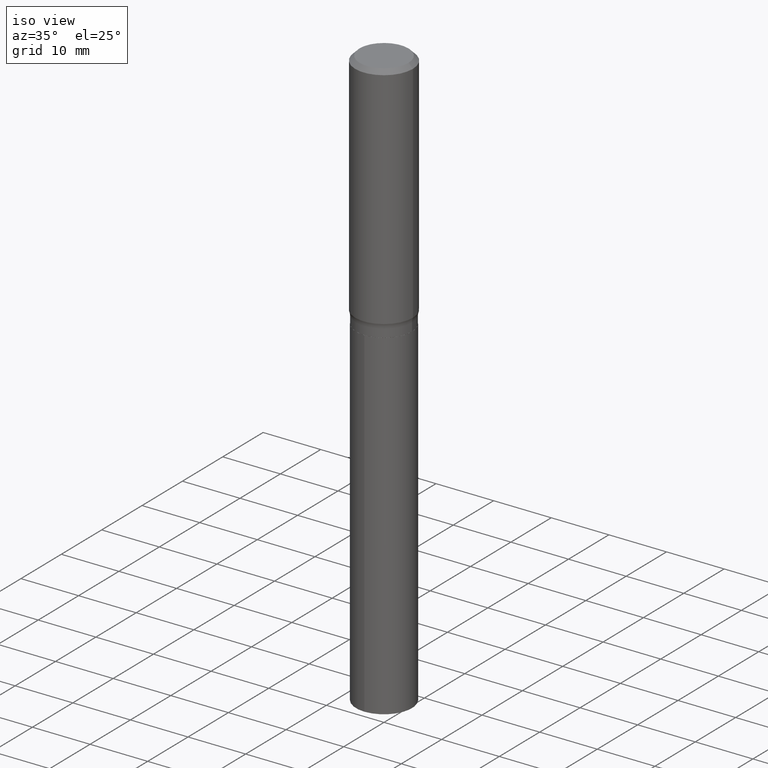
[diagram: clean part render]
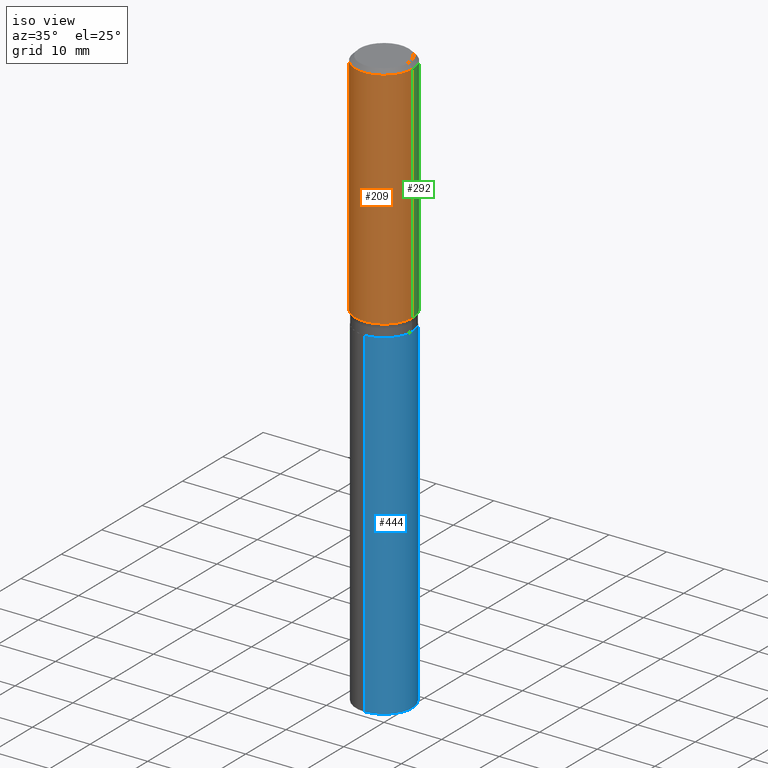
[diagram: same view with three faces highlighted in distinct colors, each labeled with its STEP entity id]
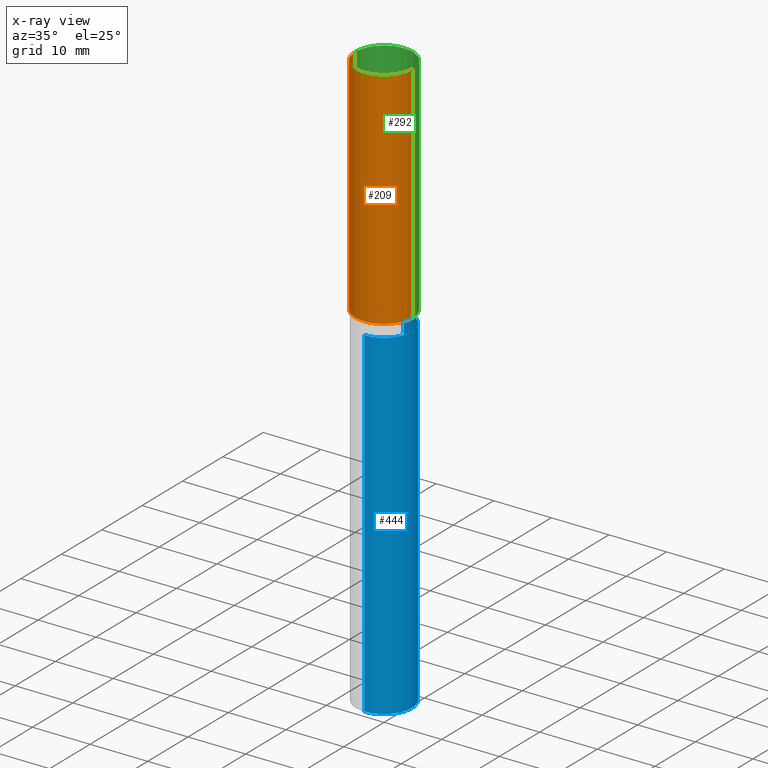
[diagram: x-ray of the same camera — body ghosted, the three highlighted faces saturated]
A machine part, iso view with three faces highlighted in distinct colors.
The next image is the same camera in x-ray (body ghosted, the three faces saturated) — at least one of them is partly hidden behind the body in this view.
Their STEP definitions:

[orange] entity #209 — the highlighted cylindrical surface (edge-blend (fillet) strip) has radius 5 mm, axis along (-0, 0, 1).
#29 = EDGE_CURVE ( 'NONE', #188, #36, #170, .T. ) ;
#36 = VERTEX_POINT ( 'NONE', #204 ) ;
#48 = CIRCLE ( 'NONE', #332, 0.1968500000000000250 ) ;
#58 = DIRECTION ( 'NONE',  ( -2.445468806185136597E-29, 3.491481338843145583E-15, 1.000000000000000000 ) ) ;
#92 = DIRECTION ( 'NONE',  ( -2.445468806185136597E-29, 3.491481338843145583E-15, 1.000000000000000000 ) ) ;
#95 = CARTESIAN_POINT ( 'NONE',  ( 7.220858017463210361E-31, -1.030947152326916856E-16, -0.02952750000000019942 ) ) ;
#101 = CARTESIAN_POINT ( 'NONE',  ( 0.000000000000000000, 0.000000000000000000, 0.000000000000000000 ) ) ;
#102 = ORIENTED_EDGE ( 'NONE', *, *, #152, .F. ) ;
#104 = CARTESIAN_POINT ( 'NONE',  ( 0.1968500000000001915, -6.842050456385563908E-15, -1.565941135774360671 ) ) ;
#110 = EDGE_CURVE ( 'NONE', #417, #188, #446, .T. ) ;
#117 = EDGE_LOOP ( 'NONE', ( #281, #389, #365, #102 ) ) ;
#152 = EDGE_CURVE ( 'NONE', #185, #36, #48, .T. ) ;
#155 = CARTESIAN_POINT ( 'NONE',  ( -0.1968500000000001082, 1.398703375343757985E-15, -9.682923725166787881E-30 ) ) ;
#170 = LINE ( 'NONE', #330, #278 ) ;
#178 = CARTESIAN_POINT ( 'NONE',  ( -0.1968500000000000250, -1.386571108914098219E-15, -0.02952750000000019942 ) ) ;
#185 = VERTEX_POINT ( 'NONE', #178 ) ;
#188 = VERTEX_POINT ( 'NONE', #104 ) ;
#204 = CARTESIAN_POINT ( 'NONE',  ( 0.1968500000000000250, -1.477690918335233294E-15, -0.02952750000000019942 ) ) ;
#209 = ADVANCED_FACE ( 'NONE', ( #263 ), #341, .T. ) ;
#211 = CARTESIAN_POINT ( 'NONE',  ( -0.1968500000000001915, -4.068750877939262145E-15, -1.565941135774360671 ) ) ;
#233 = LINE ( 'NONE', #155, #312 ) ;
#241 = AXIS2_PLACEMENT_3D ( 'NONE', #101, #377, #483 ) ;
#263 = FACE_OUTER_BOUND ( 'NONE', #117, .T. ) ;
#278 = VECTOR ( 'NONE', #470, 39.37007874015748143 ) ;
#281 = ORIENTED_EDGE ( 'NONE', *, *, #352, .F. ) ;
#305 = DIRECTION ( 'NONE',  ( -2.445468806185136877E-29, 3.491481338843145188E-15, 1.000000000000000000 ) ) ;
#312 = VECTOR ( 'NONE', #305, 39.37007874015748143 ) ;
#317 = CARTESIAN_POINT ( 'NONE',  ( 3.829460199858322232E-29, -5.467454253283021511E-15, -1.565941135774360671 ) ) ;
#330 = CARTESIAN_POINT ( 'NONE',  ( 0.1968500000000001082, -1.374596203102542397E-15, 9.598753983154305062E-30 ) ) ;
#332 = AXIS2_PLACEMENT_3D ( 'NONE', #95, #92, #368 ) ;
#341 = CYLINDRICAL_SURFACE ( 'NONE', #241, 0.1968500000000001082 ) ;
#352 = EDGE_CURVE ( 'NONE', #417, #185, #233, .T. ) ;
#365 = ORIENTED_EDGE ( 'NONE', *, *, #29, .T. ) ;
#368 = DIRECTION ( 'NONE',  ( 1.000000000000000000, -6.982962677686265922E-15, 0.000000000000000000 ) ) ;
#377 = DIRECTION ( 'NONE',  ( -2.445468806185136597E-29, 3.491481338843145583E-15, 1.000000000000000000 ) ) ;
#389 = ORIENTED_EDGE ( 'NONE', *, *, #110, .T. ) ;
#406 = AXIS2_PLACEMENT_3D ( 'NONE', #317, #58, #474 ) ;
#417 = VERTEX_POINT ( 'NONE', #211 ) ;
#446 = CIRCLE ( 'NONE', #406, 0.1968500000000002192 ) ;
#470 = DIRECTION ( 'NONE',  ( -2.445468806185136877E-29, 3.491481338843145188E-15, 1.000000000000000000 ) ) ;
#474 = DIRECTION ( 'NONE',  ( 1.000000000000000000, -6.982962677686265922E-15, 0.000000000000000000 ) ) ;
#483 = DIRECTION ( 'NONE',  ( 1.000000000000000000, -6.982962677686266711E-15, 4.876176775795935793E-29 ) ) ;

[blue] entity #444 — the highlighted cylindrical surface (edge-blend (fillet) strip) has radius 4.8501 mm, axis along (-0, 0, 1).
#21 = CYLINDRICAL_SURFACE ( 'NONE', #232, 0.1909500000000000086 ) ;
#34 = DIRECTION ( 'NONE',  ( -6.982962677686265922E-15, -1.000000000000000000, 2.861322852751257324E-15 ) ) ;
#46 = EDGE_CURVE ( 'NONE', #163, #402, #287, .T. ) ;
#49 = CARTESIAN_POINT ( 'NONE',  ( -1.333396723304151920E-15, -0.1909500000000057818, -1.653399999999999093 ) ) ;
#67 = ORIENTED_EDGE ( 'NONE', *, *, #46, .T. ) ;
#96 = DIRECTION ( 'NONE',  ( -2.445507172700810819E-29, 3.491426395809013811E-15, 1.000000000000000000 ) ) ;
#97 = CIRCLE ( 'NONE', #379, 0.1909500000000000086 ) ;
#144 = DIRECTION ( 'NONE',  ( -2.445507172700810819E-29, 3.491426395809013417E-15, 1.000000000000000000 ) ) ;
#163 = VERTEX_POINT ( 'NONE', #397 ) ;
#169 = VECTOR ( 'NONE', #362, 39.37007874015748143 ) ;
#174 = CARTESIAN_POINT ( 'NONE',  ( 9.727800187207764451E-29, -1.388846549377898755E-14, -3.977851192176776962 ) ) ;
#182 = ORIENTED_EDGE ( 'NONE', *, *, #408, .T. ) ;
#189 = VECTOR ( 'NONE', #144, 39.37007874015748143 ) ;
#208 = CARTESIAN_POINT ( 'NONE',  ( 1.356781353934008988E-15, 0.1909499999999942355, -1.653400000000000203 ) ) ;
#220 = LINE ( 'NONE', #484, #189 ) ;
#227 = VERTEX_POINT ( 'NONE', #300 ) ;
#232 = AXIS2_PLACEMENT_3D ( 'NONE', #478, #471, #251 ) ;
#237 = ORIENTED_EDGE ( 'NONE', *, *, #266, .F. ) ;
#251 = DIRECTION ( 'NONE',  ( -6.982962677686265922E-15, -1.000000000000000000, 2.861322852751257324E-15 ) ) ;
#264 = EDGE_CURVE ( 'NONE', #422, #402, #340, .T. ) ;
#266 = EDGE_CURVE ( 'NONE', #227, #422, #220, .T. ) ;
#279 = ORIENTED_EDGE ( 'NONE', *, *, #264, .F. ) ;
#283 = FACE_OUTER_BOUND ( 'NONE', #433, .T. ) ;
#287 = LINE ( 'NONE', #290, #169 ) ;
#290 = CARTESIAN_POINT ( 'NONE',  ( 1.356781353933951598E-15, 0.1909499999999942355, -1.653400000000000203 ) ) ;
#296 = DIRECTION ( 'NONE',  ( -6.982962677686265922E-15, -1.000000000000000000, 2.861322852751257324E-15 ) ) ;
#298 = CARTESIAN_POINT ( 'NONE',  ( 4.043338124146503856E-29, -5.772815245643255193E-15, -1.653399999999999537 ) ) ;
#300 = CARTESIAN_POINT ( 'NONE',  ( -1.333396723304095319E-15, -0.1909500000000139142, -3.977851192176776518 ) ) ;
#303 = DIRECTION ( 'NONE',  ( -2.445507172700810819E-29, 3.491426395809013811E-15, 1.000000000000000000 ) ) ;
#340 = CIRCLE ( 'NONE', #439, 0.1909500000000000086 ) ;
#362 = DIRECTION ( 'NONE',  ( -2.445507172700810819E-29, 3.491426395809013417E-15, 1.000000000000000000 ) ) ;
#379 = AXIS2_PLACEMENT_3D ( 'NONE', #174, #96, #296 ) ;
#397 = CARTESIAN_POINT ( 'NONE',  ( 1.356781353934008396E-15, 0.1909499999999861031, -3.977851192176777406 ) ) ;
#402 = VERTEX_POINT ( 'NONE', #208 ) ;
#408 = EDGE_CURVE ( 'NONE', #227, #163, #97, .T. ) ;
#422 = VERTEX_POINT ( 'NONE', #49 ) ;
#433 = EDGE_LOOP ( 'NONE', ( #182, #67, #279, #237 ) ) ;
#439 = AXIS2_PLACEMENT_3D ( 'NONE', #298, #303, #34 ) ;
#444 = ADVANCED_FACE ( 'NONE', ( #283 ), #21, .T. ) ;
#471 = DIRECTION ( 'NONE',  ( -2.445507172700810819E-29, 3.491426395809013811E-15, 1.000000000000000000 ) ) ;
#478 = CARTESIAN_POINT ( 'NONE',  ( 4.043338124146503856E-29, -5.772815245643255193E-15, -1.653399999999999537 ) ) ;
#484 = CARTESIAN_POINT ( 'NONE',  ( -1.333396723304151920E-15, -0.1909500000000057818, -1.653399999999999093 ) ) ;

[green] entity #292 — the highlighted cylindrical surface (edge-blend (fillet) strip) has radius 5 mm, axis along (-0, 0, 1).
#4 = CIRCLE ( 'NONE', #354, 0.1968500000000002192 ) ;
#29 = EDGE_CURVE ( 'NONE', #188, #36, #170, .T. ) ;
#36 = VERTEX_POINT ( 'NONE', #204 ) ;
#43 = EDGE_LOOP ( 'NONE', ( #461, #44, #82, #424 ) ) ;
#44 = ORIENTED_EDGE ( 'NONE', *, *, #352, .T. ) ;
#64 = FACE_OUTER_BOUND ( 'NONE', #43, .T. ) ;
#65 = AXIS2_PLACEMENT_3D ( 'NONE', #405, #409, #451 ) ;
#82 = ORIENTED_EDGE ( 'NONE', *, *, #257, .F. ) ;
#104 = CARTESIAN_POINT ( 'NONE',  ( 0.1968500000000001915, -6.842050456385563908E-15, -1.565941135774360671 ) ) ;
#107 = CARTESIAN_POINT ( 'NONE',  ( 3.829460199858322232E-29, -5.467454253283021511E-15, -1.565941135774360671 ) ) ;
#147 = CYLINDRICAL_SURFACE ( 'NONE', #65, 0.1968500000000001082 ) ;
#155 = CARTESIAN_POINT ( 'NONE',  ( -0.1968500000000001082, 1.398703375343757985E-15, -9.682923725166787881E-30 ) ) ;
#170 = LINE ( 'NONE', #330, #278 ) ;
#178 = CARTESIAN_POINT ( 'NONE',  ( -0.1968500000000000250, -1.386571108914098219E-15, -0.02952750000000019942 ) ) ;
#184 = DIRECTION ( 'NONE',  ( 1.000000000000000000, -6.982962677686265922E-15, 0.000000000000000000 ) ) ;
#185 = VERTEX_POINT ( 'NONE', #178 ) ;
#188 = VERTEX_POINT ( 'NONE', #104 ) ;
#204 = CARTESIAN_POINT ( 'NONE',  ( 0.1968500000000000250, -1.477690918335233294E-15, -0.02952750000000019942 ) ) ;
#211 = CARTESIAN_POINT ( 'NONE',  ( -0.1968500000000001915, -4.068750877939262145E-15, -1.565941135774360671 ) ) ;
#224 = DIRECTION ( 'NONE',  ( -2.445468806185136597E-29, 3.491481338843145583E-15, 1.000000000000000000 ) ) ;
#231 = CIRCLE ( 'NONE', #265, 0.1968500000000000250 ) ;
#233 = LINE ( 'NONE', #155, #312 ) ;
#257 = EDGE_CURVE ( 'NONE', #36, #185, #231, .T. ) ;
#265 = AXIS2_PLACEMENT_3D ( 'NONE', #371, #224, #407 ) ;
#268 = DIRECTION ( 'NONE',  ( -2.445468806185136597E-29, 3.491481338843145583E-15, 1.000000000000000000 ) ) ;
#271 = EDGE_CURVE ( 'NONE', #188, #417, #4, .T. ) ;
#278 = VECTOR ( 'NONE', #470, 39.37007874015748143 ) ;
#292 = ADVANCED_FACE ( 'NONE', ( #64 ), #147, .T. ) ;
#305 = DIRECTION ( 'NONE',  ( -2.445468806185136877E-29, 3.491481338843145188E-15, 1.000000000000000000 ) ) ;
#312 = VECTOR ( 'NONE', #305, 39.37007874015748143 ) ;
#330 = CARTESIAN_POINT ( 'NONE',  ( 0.1968500000000001082, -1.374596203102542397E-15, 9.598753983154305062E-30 ) ) ;
#352 = EDGE_CURVE ( 'NONE', #417, #185, #233, .T. ) ;
#354 = AXIS2_PLACEMENT_3D ( 'NONE', #107, #268, #184 ) ;
#371 = CARTESIAN_POINT ( 'NONE',  ( 7.220858017463210361E-31, -1.030947152326916856E-16, -0.02952750000000019942 ) ) ;
#405 = CARTESIAN_POINT ( 'NONE',  ( 0.000000000000000000, 0.000000000000000000, 0.000000000000000000 ) ) ;
#407 = DIRECTION ( 'NONE',  ( 1.000000000000000000, -6.982962677686265922E-15, 0.000000000000000000 ) ) ;
#409 = DIRECTION ( 'NONE',  ( -2.445468806185136597E-29, 3.491481338843145583E-15, 1.000000000000000000 ) ) ;
#417 = VERTEX_POINT ( 'NONE', #211 ) ;
#424 = ORIENTED_EDGE ( 'NONE', *, *, #29, .F. ) ;
#451 = DIRECTION ( 'NONE',  ( 1.000000000000000000, -6.982962677686266711E-15, 4.876176775795935793E-29 ) ) ;
#461 = ORIENTED_EDGE ( 'NONE', *, *, #271, .T. ) ;
#470 = DIRECTION ( 'NONE',  ( -2.445468806185136877E-29, 3.491481338843145188E-15, 1.000000000000000000 ) ) ;